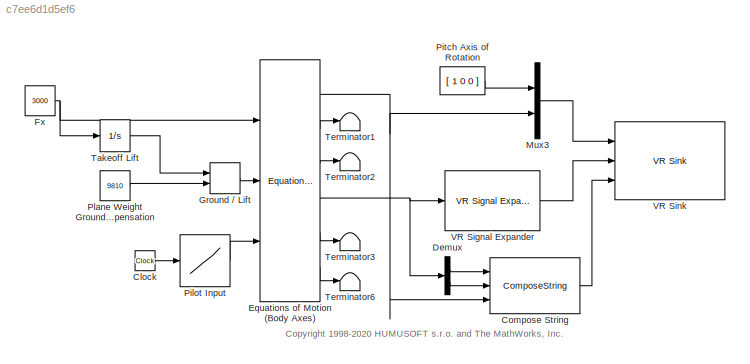
MODEL slx_c7ee6d1d5ef6
KIND model
CONFIG AbsTol = auto
CONFIG EnableMultiTasking = on
CONFIG FixedStep = auto
CONFIG MaxStep = auto
CONFIG MinStep = auto
CONFIG RelTol = 1e-3
CONFIG SampleTimeConstraint = Unconstrained
CONFIG Solver = ode45
CONFIG SolverName = ode45
CONFIG StartTime = 0.0
CONFIG StopTime = 15
BLOCK [Reference]  Equations of Motion (Body Axes)  REF=aerospace/3DoF  (lib defined in mdl_cf564d925549, slx_1354fe9238a2, +3 more)
Equations
of
Motion / Equations of Motion
(Body Axes)
  Ports = [3, 6]
  SourceBlock = aerospace/3DoF\nEquations\nof\nMotion / Equations of Motion\n(Body Axes)
  SourceProductBaseCode = SL
  SourceType = 3 DOF equations of motion
BLOCK [Clock] Clock
BLOCK [ComposeString] Compose String
  Format = 'Xe      : %7.2f m\nZe      : %7.2f m\nAttitude: %7.2f rad'
  Ports = [3, 1]
BLOCK [Demux] Demux
  Outputs = 2
  Ports = [1, 2]
BLOCK [Constant] Fx
  Value = 3000
BLOCK [MinMax] Ground // Lift
  Function = max
  InputSameDT = on
  Inputs = 2
  Ports = [2, 1]
  SaturateOnIntegerOverflow = on
  ZeroCross = off
BLOCK [Mux] Mux3
  DisplayOption = bar
  Inputs = 2
  Ports = [2, 1]
BLOCK [Lookup] Pilot Input
  InputValues = [0 1 2 8 9 15]
  Table = [0 0 -20 20 0 0]
BLOCK [Constant] Pitch Axis of Rotation
  Value = [ 1 0 0 ]
BLOCK [Constant] Plane Weight Ground Compensation
  Value = 9810
BLOCK [Integrator] Takeoff Lift
  LimitOutput = on
  LowerSaturationLimit = -Inf
  Ports = [1, 1]
  UpperSaturationLimit = 11000
  ZeroCross = off
BLOCK [Terminator] Terminator1
BLOCK [Terminator] Terminator2
BLOCK [Terminator] Terminator3
BLOCK [Terminator] Terminator6
BLOCK [Reference] VR Signal Expander  REF=vrlib/VR Signal Expander
  Ports = [1, 1]
  SourceBlock = vrlib/VR Signal Expander
  SourceProductBaseCode = SL
  SourceType = VR Signal Expander
BLOCK [Reference] VR Sink  REF=vrlib/VR Sink
  InstantiateOnLoad = on
  Ports = [3]
  SourceBlock = vrlib/VR Sink
  SourceProductBaseCode = SL
  SourceType = Virtual Reality Sink
ANNOTATION (root): <copyright redacted>
NET  Equations of Motion (Body Axes):1 -> Compose String:3, Mux3:2
LINE  Equations of Motion (Body Axes):2 -> Terminator1:1
LINE  Equations of Motion (Body Axes):3 -> Terminator2:1
NET  Equations of Motion (Body Axes):4 -> Demux:1, VR Signal Expander:1
LINE  Equations of Motion (Body Axes):5 -> Terminator3:1
LINE  Equations of Motion (Body Axes):6 -> Terminator6:1
LINE Clock:1 -> Pilot Input:1
LINE Compose String:1 -> VR Sink:3
LINE Demux:1 -> Compose String:1
LINE Demux:2 -> Compose String:2
NET Fx:1 ->  Equations of Motion (Body Axes):1, Takeoff Lift:1
LINE Ground // Lift:1 ->  Equations of Motion (Body Axes):2
LINE Mux3:1 -> VR Sink:1
LINE Pilot Input:1 ->  Equations of Motion (Body Axes):3
LINE Pitch Axis of Rotation:1 -> Mux3:1
LINE Plane Weight Ground Compensation:1 -> Ground // Lift:2
LINE Takeoff Lift:1 -> Ground // Lift:1
LINE VR Signal Expander:1 -> VR Sink:2
note: NET lines group one-source signal fan-out (src -> all destinations, sorted); 1:1 wires keep LINE
